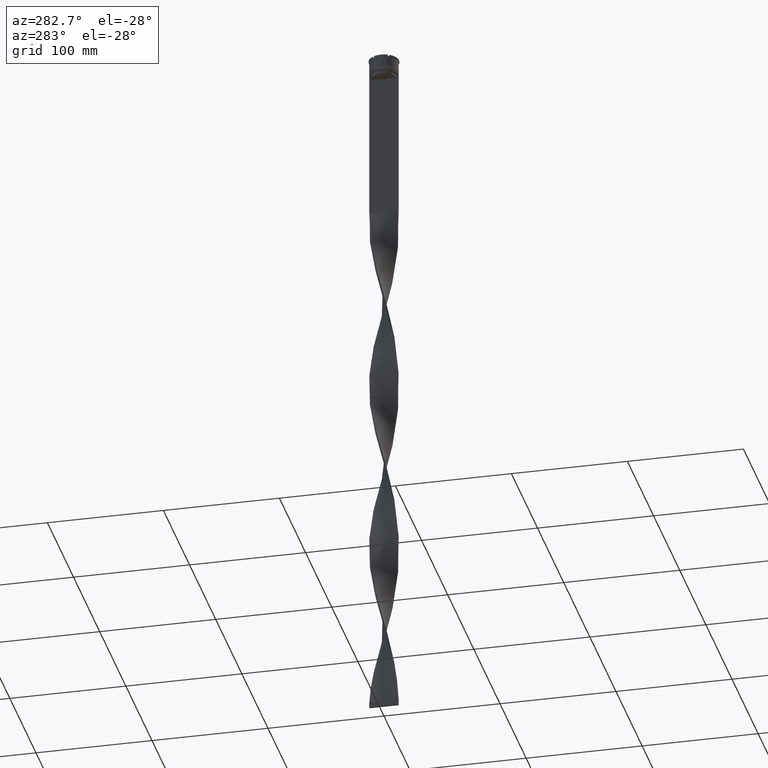
[diagram: clean part render]
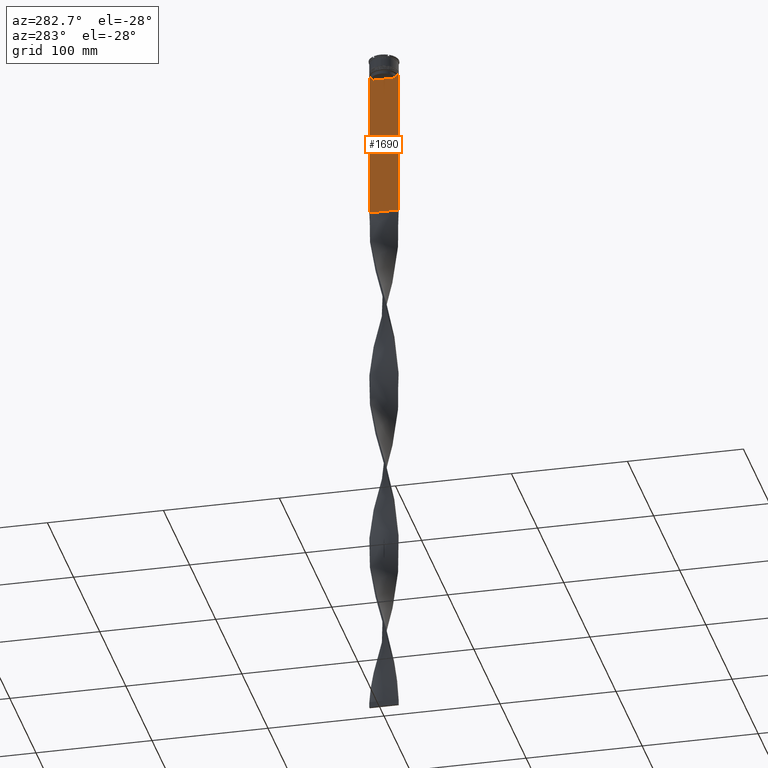
[diagram: same view with one face highlighted and labeled with its STEP entity id]
A machine part, auxiliary view. The second image highlights one B-rep face of the part: STEP entity #1690.
In plain terms, the highlighted planar face has unit normal (-1, 0, 0).
Its self-contained STEP definition (entity closure, byte-faithful):
#20 = VECTOR ( 'NONE', #2526, 1000.000000000000000 ) ;
#92 = EDGE_CURVE ( 'NONE', #4416, #4265, #1254, .T. ) ;
#425 = EDGE_LOOP ( 'NONE', ( #4389, #1062, #2258, #4062, #3287, #2910, #1768, #4835, #557, #1921, #1587, #1962 ) ) ;
#477 = CARTESIAN_POINT ( 'NONE',  ( -0.7499999999999997780, 11.04122051153452055, -14.33334204648729582 ) ) ;
#515 = VECTOR ( 'NONE', #3877, 1000.000000000000000 ) ;
#553 = VERTEX_POINT ( 'NONE', #3039 ) ;
#557 = ORIENTED_EDGE ( 'NONE', *, *, #3749, .F. ) ;
#670 = DIRECTION ( 'NONE',  ( -1.000000000000000000, 0.000000000000000000, 0.000000000000000000 ) ) ;
#779 = CARTESIAN_POINT ( 'NONE',  ( -0.7499999999999997780, -11.37530219378809093, -14.00000000000000178 ) ) ;
#800 = CARTESIAN_POINT ( 'NONE',  ( -0.7499999999999997780, 12.50000000000000000, -143.0000000000000284 ) ) ;
#831 = VERTEX_POINT ( 'NONE', #779 ) ;
#869 = DIRECTION ( 'NONE',  ( 0.000000000000000000, 0.000000000000000000, -1.000000000000000000 ) ) ;
#872 = LINE ( 'NONE', #3122, #515 ) ;
#919 = CARTESIAN_POINT ( 'NONE',  ( -0.7499999999999997780, 12.50000000000000000, 11.04495957273638673 ) ) ;
#952 = CARTESIAN_POINT ( 'NONE',  ( -0.7499999999999997780, -11.04122051801870619, -14.33334204001847745 ) ) ;
#982 = B_SPLINE_CURVE_WITH_KNOTS ( 'NONE', 3,
 ( #4320, #952, #3636, #1686 ),
 .UNSPECIFIED., .F., .F.,
 ( 4, 4 ),
 ( 0.05009718908159448147, 0.05081156920313960323 ),
 .UNSPECIFIED. ) ;
#998 = B_SPLINE_CURVE_WITH_KNOTS ( 'NONE', 3,
 ( #3046, #1165, #477, #2293 ),
 .UNSPECIFIED., .F., .F.,
 ( 4, 4 ),
 ( 0.01936090553552769281, 0.02006881572333104116 ),
 .UNSPECIFIED. ) ;
#1022 = CARTESIAN_POINT ( 'NONE',  ( -0.7499999999999997780, -10.87416663473574374, 0.000000000000000000 ) ) ;
#1032 = EDGE_CURVE ( 'NONE', #2866, #4544, #1189, .T. ) ;
#1037 = PLANE ( 'NONE',  #1510 ) ;
#1062 = ORIENTED_EDGE ( 'NONE', *, *, #1419, .F. ) ;
#1116 = VECTOR ( 'NONE', #4631, 1000.000000000000000 ) ;
#1165 = CARTESIAN_POINT ( 'NONE',  ( -0.7499999999999997780, 11.20826531587977648, -14.16667499681701514 ) ) ;
#1189 = LINE ( 'NONE', #2351, #1116 ) ;
#1254 = LINE ( 'NONE', #4601, #3944 ) ;
#1286 = CARTESIAN_POINT ( 'NONE',  ( -0.7499999999999997780, -12.50000000000000000, -14.00000000000000178 ) ) ;
#1307 = CARTESIAN_POINT ( 'NONE',  ( -0.7499999999999997780, -12.50000000000000000, -14.00000000000000178 ) ) ;
#1326 = LINE ( 'NONE', #2037, #2707 ) ;
#1419 = EDGE_CURVE ( 'NONE', #2647, #3614, #4381, .T. ) ;
#1505 = VECTOR ( 'NONE', #2116, 1000.000000000000000 ) ;
#1510 = AXIS2_PLACEMENT_3D ( 'NONE', #4038, #670, #2541 ) ;
#1587 = ORIENTED_EDGE ( 'NONE', *, *, #1633, .F. ) ;
#1592 = VECTOR ( 'NONE', #2870, 1000.000000000000000 ) ;
#1629 = CARTESIAN_POINT ( 'NONE',  ( -0.7499999999999997780, -10.87416663473574019, -17.00000000000000000 ) ) ;
#1633 = EDGE_CURVE ( 'NONE', #4819, #4340, #3654, .T. ) ;
#1686 = CARTESIAN_POINT ( 'NONE',  ( -0.7499999999999997780, -11.37530219378809093, -14.00000000000000178 ) ) ;
#1690 = ADVANCED_FACE ( 'NONE', ( #2168 ), #1037, .T. ) ;
#1768 = ORIENTED_EDGE ( 'NONE', *, *, #1032, .F. ) ;
#1921 = ORIENTED_EDGE ( 'NONE', *, *, #1986, .F. ) ;
#1962 = ORIENTED_EDGE ( 'NONE', *, *, #4285, .F. ) ;
#1986 = EDGE_CURVE ( 'NONE', #4340, #2688, #2903, .T. ) ;
#2037 = CARTESIAN_POINT ( 'NONE',  ( -0.7499999999999997780, -12.50000000000000000, 11.04495957273638673 ) ) ;
#2111 = EDGE_CURVE ( 'NONE', #831, #2866, #3757, .T. ) ;
#2116 = DIRECTION ( 'NONE',  ( 0.000000000000000000, -1.000000000000000000, 0.000000000000000000 ) ) ;
#2168 = FACE_OUTER_BOUND ( 'NONE', #425, .T. ) ;
#2258 = ORIENTED_EDGE ( 'NONE', *, *, #2261, .F. ) ;
#2261 = EDGE_CURVE ( 'NONE', #2892, #2647, #4652, .T. ) ;
#2293 = CARTESIAN_POINT ( 'NONE',  ( -0.7499999999999997780, 10.87416663473574374, -14.50000000000000000 ) ) ;
#2351 = CARTESIAN_POINT ( 'NONE',  ( -0.7499999999999997780, -12.50000000000000000, -14.00000000000000178 ) ) ;
#2354 = EDGE_CURVE ( 'NONE', #4544, #4416, #1326, .T. ) ;
#2370 = LINE ( 'NONE', #919, #2401 ) ;
#2401 = VECTOR ( 'NONE', #869, 1000.000000000000000 ) ;
#2526 = DIRECTION ( 'NONE',  ( -0.000000000000000000, -0.000000000000000000, 1.000000000000000000 ) ) ;
#2541 = DIRECTION ( 'NONE',  ( 0.000000000000000000, 0.000000000000000000, 1.000000000000000000 ) ) ;
#2647 = VERTEX_POINT ( 'NONE', #3888 ) ;
#2688 = VERTEX_POINT ( 'NONE', #3816 ) ;
#2707 = VECTOR ( 'NONE', #3778, 1000.000000000000000 ) ;
#2756 = CARTESIAN_POINT ( 'NONE',  ( -0.7499999999999997780, 11.37530219378809093, -14.00000000000000178 ) ) ;
#2829 = CARTESIAN_POINT ( 'NONE',  ( -0.7499999999999997780, -12.37729776647553059, -14.00000000000000178 ) ) ;
#2866 = VERTEX_POINT ( 'NONE', #2829 ) ;
#2870 = DIRECTION ( 'NONE',  ( 0.000000000000000000, -1.000000000000000000, 0.000000000000000000 ) ) ;
#2892 = VERTEX_POINT ( 'NONE', #3974 ) ;
#2894 = CARTESIAN_POINT ( 'NONE',  ( -0.7499999999999997780, 10.90000000000000213, -17.00000000000000000 ) ) ;
#2903 = LINE ( 'NONE', #1022, #20 ) ;
#2910 = ORIENTED_EDGE ( 'NONE', *, *, #2354, .F. ) ;
#3039 = CARTESIAN_POINT ( 'NONE',  ( -0.7499999999999997780, 10.87416663473574374, -14.50000000000000000 ) ) ;
#3046 = CARTESIAN_POINT ( 'NONE',  ( -0.7499999999999997780, 11.37530219378809093, -14.00000000000000178 ) ) ;
#3122 = CARTESIAN_POINT ( 'NONE',  ( -0.7499999999999997780, 10.87416663473574374, 0.000000000000000000 ) ) ;
#3287 = ORIENTED_EDGE ( 'NONE', *, *, #92, .F. ) ;
#3321 = DIRECTION ( 'NONE',  ( 0.000000000000000000, -1.000000000000000000, 0.000000000000000000 ) ) ;
#3342 = VECTOR ( 'NONE', #3466, 1000.000000000000000 ) ;
#3365 = EDGE_CURVE ( 'NONE', #2892, #4265, #2370, .T. ) ;
#3466 = DIRECTION ( 'NONE',  ( 0.000000000000000000, -1.000000000000000000, 0.000000000000000000 ) ) ;
#3614 = VERTEX_POINT ( 'NONE', #2756 ) ;
#3636 = CARTESIAN_POINT ( 'NONE',  ( -0.7499999999999997780, -11.20826532207830439, -14.16667499063191471 ) ) ;
#3654 = LINE ( 'NONE', #2894, #1592 ) ;
#3749 = EDGE_CURVE ( 'NONE', #2688, #831, #982, .T. ) ;
#3757 = LINE ( 'NONE', #4443, #4496 ) ;
#3778 = DIRECTION ( 'NONE',  ( 0.000000000000000000, 0.000000000000000000, -1.000000000000000000 ) ) ;
#3780 = CARTESIAN_POINT ( 'NONE',  ( -0.7499999999999997780, 10.87416663473574019, -17.00000000000000000 ) ) ;
#3801 = CARTESIAN_POINT ( 'NONE',  ( -0.7499999999999997780, -12.50000000000000000, -143.0000000000000284 ) ) ;
#3816 = CARTESIAN_POINT ( 'NONE',  ( -0.7499999999999997780, -10.87416663473574374, -14.50000000000000000 ) ) ;
#3877 = DIRECTION ( 'NONE',  ( 0.000000000000000000, 0.000000000000000000, -1.000000000000000000 ) ) ;
#3888 = CARTESIAN_POINT ( 'NONE',  ( -0.7499999999999997780, 12.37729776647553059, -14.00000000000000178 ) ) ;
#3944 = VECTOR ( 'NONE', #4678, 1000.000000000000000 ) ;
#3974 = CARTESIAN_POINT ( 'NONE',  ( -0.7499999999999997780, 12.50000000000000000, -14.00000000000000178 ) ) ;
#3991 = CARTESIAN_POINT ( 'NONE',  ( -0.7499999999999997780, -12.50000000000000000, -14.00000000000000178 ) ) ;
#4038 = CARTESIAN_POINT ( 'NONE',  ( -0.7499999999999997780, -12.50000000000000000, 11.04495957273638673 ) ) ;
#4062 = ORIENTED_EDGE ( 'NONE', *, *, #3365, .T. ) ;
#4265 = VERTEX_POINT ( 'NONE', #800 ) ;
#4285 = EDGE_CURVE ( 'NONE', #553, #4819, #872, .T. ) ;
#4320 = CARTESIAN_POINT ( 'NONE',  ( -0.7499999999999997780, -10.87416663473574374, -14.50000000000000000 ) ) ;
#4340 = VERTEX_POINT ( 'NONE', #1629 ) ;
#4381 = LINE ( 'NONE', #3991, #1505 ) ;
#4389 = ORIENTED_EDGE ( 'NONE', *, *, #4409, .F. ) ;
#4409 = EDGE_CURVE ( 'NONE', #3614, #553, #998, .T. ) ;
#4416 = VERTEX_POINT ( 'NONE', #3801 ) ;
#4443 = CARTESIAN_POINT ( 'NONE',  ( -0.7499999999999997780, -12.50000000000000000, -14.00000000000000178 ) ) ;
#4496 = VECTOR ( 'NONE', #3321, 1000.000000000000000 ) ;
#4544 = VERTEX_POINT ( 'NONE', #1286 ) ;
#4601 = CARTESIAN_POINT ( 'NONE',  ( -0.7499999999999997780, -12.50000000000000000, -143.0000000000000284 ) ) ;
#4631 = DIRECTION ( 'NONE',  ( 0.000000000000000000, -1.000000000000000000, 0.000000000000000000 ) ) ;
#4652 = LINE ( 'NONE', #1307, #3342 ) ;
#4678 = DIRECTION ( 'NONE',  ( 0.000000000000000000, 1.000000000000000000, 0.000000000000000000 ) ) ;
#4819 = VERTEX_POINT ( 'NONE', #3780 ) ;
#4835 = ORIENTED_EDGE ( 'NONE', *, *, #2111, .F. ) ;